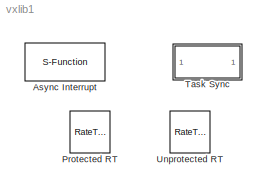
MODEL vxlib1
KIND library
BLOCK [S-Function] Async Interrupt
  FunctionName = vxinterrupt1
  MaskCallbackString = |||||
  MaskDescription = Create VME based Interrupt Service Routine which will execute the downstream subsystem or Task Block.
  MaskDisplay = port_label('output',1,['IRQ' irqstr])\nport_label(pname,1,pvalue)\n
  MaskEnableString = on,on,on,on,on,on
  MaskHelp = helpview([docroot '/mapfiles/rtw_ug.map'], 'rtw_async_support');
  MaskIconFrame = on
  MaskIconOpaque = on
  MaskIconRotate = none
  MaskIconUnits = autoscale
  MaskInitialization = devicedir = fullfile(matlabroot,'rtw','c','tornado','devices');\nif isempty(findstr(devicedir, path))\n	addpath(devicedir);\nend\n\nirqstr = num2str(irqnumbers);\nif length(irqstr) ~= 1\n	irqstr = 'N';\nend\n\nif ~showinput\n	% make the input port label disappear\n	pvalue = irqstr;\n	pname = 'output';\nelse\n	pvalue = 'SimIRQ';\n	pname = 'input';\nend\nif strcmp(get_param(bdroot(gcbh),'BlockDiagra...<+828ch>
  MaskPromptString = VME interrupt number(s):|VME interrupt vector offset(s):|Effective priority(s):|Preemption flag(s): preemptable-1, non-preemptable-0|Timer resolution (seconds):|Enable simulation input:
  MaskSelfModifiable = on
  MaskStyleString = edit,edit,edit,edit,edit,checkbox
  MaskTabNameString = ,,,,,
  MaskToolTipString = on,on,on,on,on,on
  MaskTunableValueString = off,off,off,off,off,off
  MaskType = VxWorks Interrrupt Block
  MaskValueString = [1 2]|[192 193]|[10 11]|[0 1]|1/60|on
  MaskVarAliasString = ,,,,,
  MaskVariables = irqnumbers=@1;irqoffsets=@2;irqpriorities=@3;irqpreempts=@4;tickres=@5;showinput=@6;
  MaskVisibilityString = on,on,on,on,on,on
  Parameters = irqnumbers, irqoffsets, irqpriorities, irqpreempts, showinput,tickres
  Ports = [1, 1]
BLOCK [RateTransition] Protected RT
  Deterministic = off
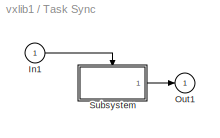
BLOCK [SubSystem] Task Sync
  MaskCallbackString = |||a=get_param(gcb,'MaskValues');if strcmp(a{4},'on'), set_param(gcb,'MaskVisibilities',{'on','on','on','on','off'});else,set_param(gcb,'MaskVisibilities',{'on','on','on','on','on'});end|
  MaskDescription = Creates a Task function which is spawned as a separate VxWorks Task. The Task function runs the code of the downstream function-call subsystem. When this block is run, a semaphore is used to enable the task execution.
  MaskDisplay = disp(['Task\\n''',taskname,''''])\n
  MaskEnableString = on,on,on,on,on
  MaskHelp = helpview([docroot '/mapfiles/rtw_ug.map'], 'rtw_async_support');
  MaskIconFrame = on
  MaskIconOpaque = on
  MaskIconRotate = none
  MaskIconUnits = autoscale
  MaskInitialization = devicedir = fullfile(matlabroot,'rtw','c','tornado','devices');\nif isempty(findstr(devicedir, path))\n	addpath(devicedir);\nend\n\nif ~iscvar(taskname)\n   errordlg('invalid Task Name, first character must be a letter or underscore and remaining characters must be letters,underscores or numbers.','Task Block Error','replace');\n   taskname = '';\nend\n
  MaskPromptString = Task name (10 characters or less):|Task priority (0-255):|Stack size (bytes):|Synchronize the data transfer of this task with the caller task|Timer resolution (seconds)
  MaskStyleString = edit,edit,edit,checkbox,edit
  MaskTabNameString = ,,,,
  MaskToolTipString = on,on,on,on,on
  MaskTunableValueString = off,off,off,on,on
  MaskType = VxWorks Task Block
  MaskValueString = Task0|50|8192|off|1/60
  MaskVarAliasString = ,,,,
  MaskVariables = taskname=&1;taskpriority=@2;taskstacksize=@3;parentmanaget=@4;tickres=@5;
  MaskVisibilityString = on,on,on,on,on
  MinAlgLoopOccurrences = off
  Ports = [1, 1]
  PropExecContextAcrossSSBoundary = on
  RTWSystemCode = Auto
  TreatAsAtomicUnit = off
BLOCK [Inport] Task Sync/In1
  IconDisplay = Port number
  LatchInput = off
BLOCK [Outport] Task Sync/Out1
  BusOutputAsStruct = off
  IconDisplay = Port number
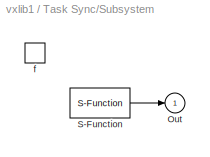
BLOCK [SubSystem] Task Sync/Subsystem
  MaskIconFrame = on
  MaskIconOpaque = on
  MaskIconRotate = none
  MaskIconUnits = autoscale
  MaskType = VxWorks Task Block
  MinAlgLoopOccurrences = off
  Ports = [0, 1, 0, 1]
  PropExecContextAcrossSSBoundary = on
  RTWSystemCode = Inline
  TreatAsAtomicUnit = on
BLOCK [Outport] Task Sync/Subsystem/Out
  BusOutputAsStruct = off
  IconDisplay = Port number
BLOCK [S-Function] Task Sync/Subsystem/S-Function
  FunctionName = vxtask1
  Parameters = taskname, taskpriority, taskstacksize, parentmanaget, tickres
  Ports = [0, 1]
BLOCK [TriggerPort] Task Sync/Subsystem/f
  Ports = []
  TriggerType = function-call
BLOCK [RateTransition] Unprotected RT
  Integrity = off
LINE Task Sync/In1:1 -> Task Sync/Subsystem:trigger
LINE Task Sync/Subsystem/S-Function:1 -> Task Sync/Subsystem/Out:1
LINE Task Sync/Subsystem:1 -> Task Sync/Out1:1
